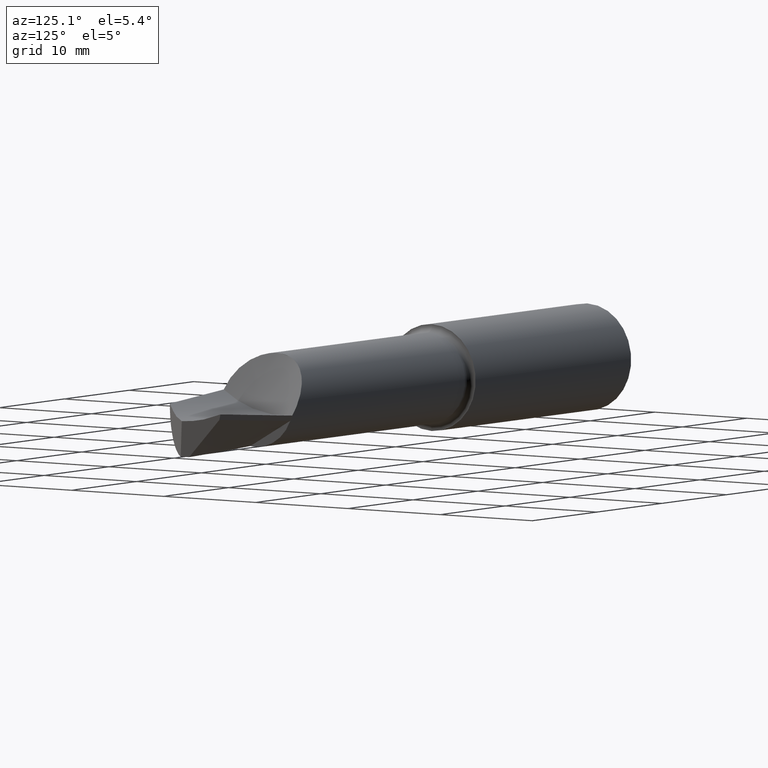
[diagram: clean part render]
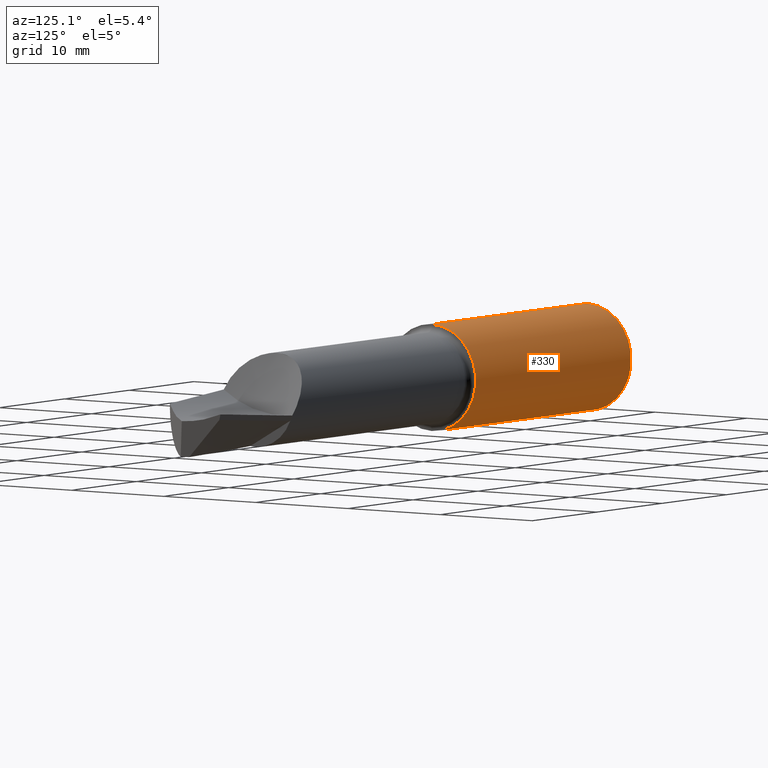
[diagram: same view with one face highlighted and labeled with its STEP entity id]
A machine part, auxiliary view. The second image highlights one B-rep face of the part: STEP entity #330.
In plain terms, the highlighted cylindrical surface (partial cylindrical patch) has radius 4.7587 mm, axis along (-1, -0, -0).
Its self-contained STEP definition (entity closure, byte-faithful):
#16 = FACE_OUTER_BOUND ( 'NONE', #149, .T. ) ;
#22 = EDGE_CURVE ( 'NONE', #176, #111, #827, .T. ) ;
#39 = CARTESIAN_POINT ( 'NONE',  ( 0.9598893049320387227, 0.000000000000000000, 0.1873499999999999888 ) ) ;
#62 = ORIENTED_EDGE ( 'NONE', *, *, #168, .F. ) ;
#91 = DIRECTION ( 'NONE',  ( 0.000000000000000000, 0.000000000000000000, 1.000000000000000000 ) ) ;
#111 = VERTEX_POINT ( 'NONE', #379 ) ;
#130 = ORIENTED_EDGE ( 'NONE', *, *, #208, .F. ) ;
#144 = CARTESIAN_POINT ( 'NONE',  ( 0.000000000000000000, 0.000000000000000000, 0.1873499999999999888 ) ) ;
#149 = EDGE_LOOP ( 'NONE', ( #62, #784, #130, #238 ) ) ;
#168 = EDGE_CURVE ( 'NONE', #509, #176, #629, .T. ) ;
#176 = VERTEX_POINT ( 'NONE', #39 ) ;
#204 = DIRECTION ( 'NONE',  ( -1.000000000000000000, -0.000000000000000000, -0.000000000000000000 ) ) ;
#208 = EDGE_CURVE ( 'NONE', #111, #296, #340, .T. ) ;
#217 = DIRECTION ( 'NONE',  ( -1.000000000000000000, -0.000000000000000000, -0.000000000000000000 ) ) ;
#238 = ORIENTED_EDGE ( 'NONE', *, *, #22, .F. ) ;
#296 = VERTEX_POINT ( 'NONE', #478 ) ;
#330 = ADVANCED_FACE ( 'NONE', ( #16 ), #505, .T. ) ;
#340 = CIRCLE ( 'NONE', #513, 0.1873499999999999888 ) ;
#379 = CARTESIAN_POINT ( 'NONE',  ( 0.01499999999999999424, 0.000000000000000000, 0.1873499999999999888 ) ) ;
#395 = CARTESIAN_POINT ( 'NONE',  ( 0.9598893049320387227, 2.294375778202566330E-17, -0.1873499999999999888 ) ) ;
#478 = CARTESIAN_POINT ( 'NONE',  ( 0.01499999999999999424, 2.294375778202566330E-17, -0.1873499999999999888 ) ) ;
#489 = EDGE_CURVE ( 'NONE', #509, #296, #520, .T. ) ;
#505 = CYLINDRICAL_SURFACE ( 'NONE', #742, 0.1873499999999999888 ) ;
#509 = VERTEX_POINT ( 'NONE', #395 ) ;
#513 = AXIS2_PLACEMENT_3D ( 'NONE', #746, #696, #675 ) ;
#515 = CARTESIAN_POINT ( 'NONE',  ( 0.9598893049320387227, 0.000000000000000000, 0.000000000000000000 ) ) ;
#520 = LINE ( 'NONE', #852, #657 ) ;
#587 = DIRECTION ( 'NONE',  ( -1.000000000000000000, -0.000000000000000000, -0.000000000000000000 ) ) ;
#592 = DIRECTION ( 'NONE',  ( 0.000000000000000000, 0.000000000000000000, -1.000000000000000000 ) ) ;
#600 = AXIS2_PLACEMENT_3D ( 'NONE', #515, #788, #592 ) ;
#629 = CIRCLE ( 'NONE', #600, 0.1873499999999999888 ) ;
#657 = VECTOR ( 'NONE', #587, 39.37007874015748143 ) ;
#675 = DIRECTION ( 'NONE',  ( 0.000000000000000000, 0.000000000000000000, 1.000000000000000000 ) ) ;
#690 = VECTOR ( 'NONE', #204, 39.37007874015748143 ) ;
#696 = DIRECTION ( 'NONE',  ( -1.000000000000000000, -0.000000000000000000, -0.000000000000000000 ) ) ;
#742 = AXIS2_PLACEMENT_3D ( 'NONE', #770, #217, #91 ) ;
#746 = CARTESIAN_POINT ( 'NONE',  ( 0.01499999999999999424, 0.000000000000000000, 0.000000000000000000 ) ) ;
#770 = CARTESIAN_POINT ( 'NONE',  ( 0.000000000000000000, 0.000000000000000000, 0.000000000000000000 ) ) ;
#784 = ORIENTED_EDGE ( 'NONE', *, *, #489, .T. ) ;
#788 = DIRECTION ( 'NONE',  ( 1.000000000000000000, 0.000000000000000000, 0.000000000000000000 ) ) ;
#827 = LINE ( 'NONE', #144, #690 ) ;
#852 = CARTESIAN_POINT ( 'NONE',  ( 0.000000000000000000, 2.294375778202566330E-17, -0.1873499999999999888 ) ) ;